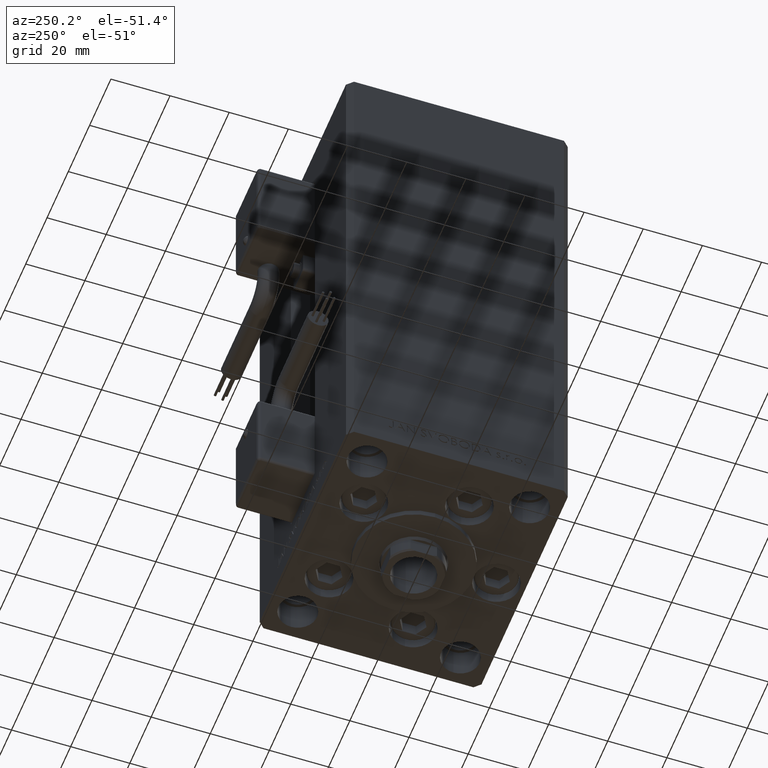
[diagram: clean part render]
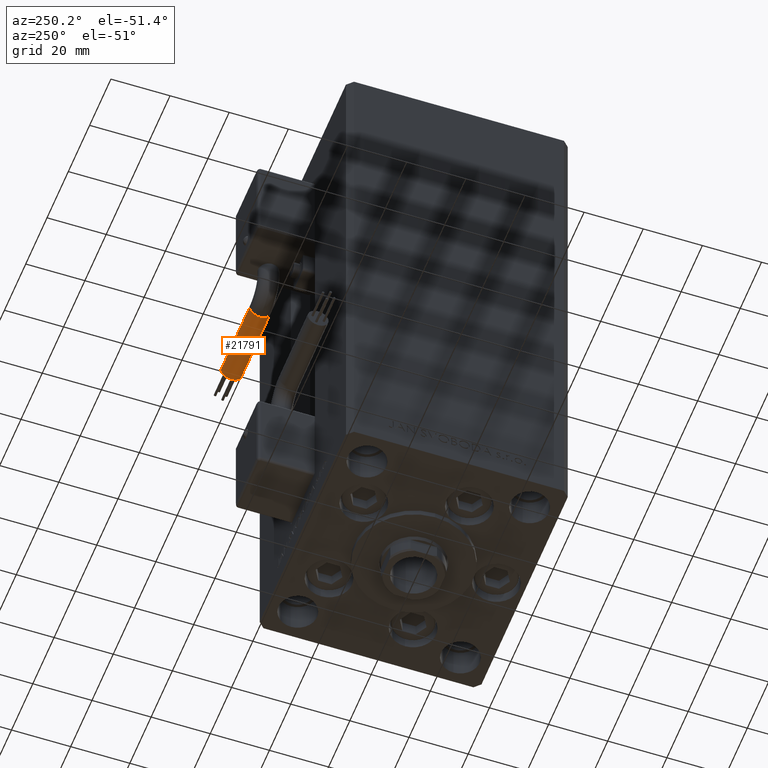
[diagram: same view with one face highlighted and labeled with its STEP entity id]
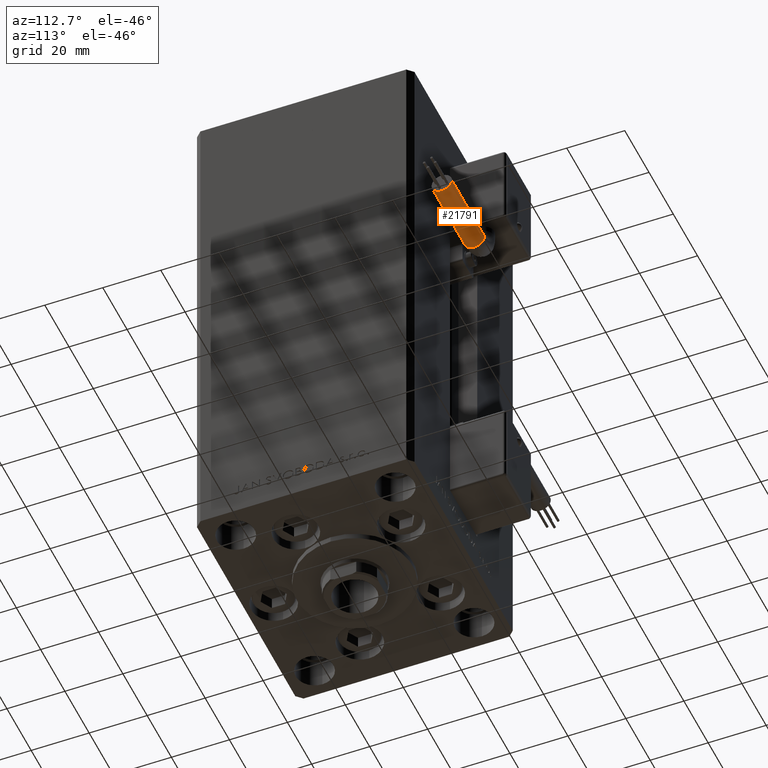
[diagram: same view with one face highlighted and labeled with its STEP entity id]
A machine part, auxiliary view. The second image highlights one B-rep face of the part: STEP entity #21791.
A second angle (auxiliary view) of the same face is appended — the face is thin or edge-on in the first view.
In plain terms, the highlighted cylindrical surface (edge-blend (fillet) strip) has radius 3.5 mm, axis along (1, -0, 0).
Its self-contained STEP definition (entity closure, byte-faithful):
#3403 = ORIENTED_EDGE ( 'NONE', *, *, #40081, .F. ) ;
#4145 = EDGE_LOOP ( 'NONE', ( #23129, #50559, #38020, #38133, #3403 ) ) ;
#4438 = CIRCLE ( 'NONE', #17840, 3.500000000000003109 ) ;
#5101 = CARTESIAN_POINT ( 'NONE',  ( 13.79999999999999893, 38.50000000000000000, -65.00000000000000000 ) ) ;
#5744 = EDGE_CURVE ( 'NONE', #44976, #6992, #22510, .T. ) ;
#6794 = CARTESIAN_POINT ( 'NONE',  ( 40.80000000000000426, 42.00000000000000000, -65.00000000000000000 ) ) ;
#6992 = VERTEX_POINT ( 'NONE', #30523 ) ;
#7109 = CARTESIAN_POINT ( 'NONE',  ( 13.79999999999999893, 42.00000000000000000, -68.50000000000000000 ) ) ;
#9653 = CYLINDRICAL_SURFACE ( 'NONE', #33585, 3.500000000000003109 ) ;
#11167 = EDGE_CURVE ( 'NONE', #37258, #44976, #33373, .T. ) ;
#12368 = VECTOR ( 'NONE', #30132, 1000.000000000000000 ) ;
#13366 = CARTESIAN_POINT ( 'NONE',  ( 40.80000000000000426, 38.50000000000000000, -65.00000000000000000 ) ) ;
#14152 = CARTESIAN_POINT ( 'NONE',  ( 13.80000000000000071, 45.50000000000000711, -65.00000000000000000 ) ) ;
#15051 = VERTEX_POINT ( 'NONE', #13366 ) ;
#15392 = CARTESIAN_POINT ( 'NONE',  ( 13.79999999999999893, 45.50000000000000711, -65.00000000000000000 ) ) ;
#15614 = CARTESIAN_POINT ( 'NONE',  ( 13.79999999999999893, 42.00000000000000000, -65.00000000000000000 ) ) ;
#17840 = AXIS2_PLACEMENT_3D ( 'NONE', #6794, #22233, #30110 ) ;
#20922 = CARTESIAN_POINT ( 'NONE',  ( 13.79999999999999893, 42.00000000000000000, -65.00000000000000000 ) ) ;
#21791 = ADVANCED_FACE ( 'NONE', ( #29808 ), #9653, .T. ) ;
#22233 = DIRECTION ( 'NONE',  ( 1.000000000000000000, 0.000000000000000000, 2.220446049250000002E-16 ) ) ;
#22510 = LINE ( 'NONE', #14152, #12368 ) ;
#22557 = AXIS2_PLACEMENT_3D ( 'NONE', #23216, #47264, #39176 ) ;
#22598 = CIRCLE ( 'NONE', #22557, 3.500000000000003109 ) ;
#23129 = ORIENTED_EDGE ( 'NONE', *, *, #41287, .T. ) ;
#23216 = CARTESIAN_POINT ( 'NONE',  ( 13.79999999999999893, 42.00000000000000000, -65.00000000000000000 ) ) ;
#25874 = DIRECTION ( 'NONE',  ( -4.956352788505158337E-16, -1.000000000000000000, 0.000000000000000000 ) ) ;
#28232 = CARTESIAN_POINT ( 'NONE',  ( 13.79999999999999716, 38.50000000000000000, -65.00000000000000000 ) ) ;
#29808 = FACE_OUTER_BOUND ( 'NONE', #4145, .T. ) ;
#30090 = VECTOR ( 'NONE', #44168, 1000.000000000000000 ) ;
#30110 = DIRECTION ( 'NONE',  ( 0.000000000000000000, 0.000000000000000000, -1.000000000000000000 ) ) ;
#30132 = DIRECTION ( 'NONE',  ( 1.000000000000000000, -2.599999999999999847E-16, 2.220446049250000002E-16 ) ) ;
#30523 = CARTESIAN_POINT ( 'NONE',  ( 40.80000000000000426, 45.50000000000000711, -65.00000000000000000 ) ) ;
#31595 = DIRECTION ( 'NONE',  ( 0.000000000000000000, 0.000000000000000000, -1.000000000000000000 ) ) ;
#33373 = CIRCLE ( 'NONE', #39170, 3.500000000000003109 ) ;
#33585 = AXIS2_PLACEMENT_3D ( 'NONE', #20922, #45992, #25874 ) ;
#37258 = VERTEX_POINT ( 'NONE', #7109 ) ;
#38020 = ORIENTED_EDGE ( 'NONE', *, *, #5744, .T. ) ;
#38133 = ORIENTED_EDGE ( 'NONE', *, *, #49365, .F. ) ;
#39170 = AXIS2_PLACEMENT_3D ( 'NONE', #15614, #47249, #31595 ) ;
#39176 = DIRECTION ( 'NONE',  ( 0.000000000000000000, 0.000000000000000000, -1.000000000000000000 ) ) ;
#40081 = EDGE_CURVE ( 'NONE', #43215, #15051, #40779, .T. ) ;
#40779 = LINE ( 'NONE', #28232, #30090 ) ;
#41287 = EDGE_CURVE ( 'NONE', #43215, #37258, #22598, .T. ) ;
#43215 = VERTEX_POINT ( 'NONE', #5101 ) ;
#44168 = DIRECTION ( 'NONE',  ( 1.000000000000000000, -2.599999999999999847E-16, 2.220446049250000002E-16 ) ) ;
#44976 = VERTEX_POINT ( 'NONE', #15392 ) ;
#45992 = DIRECTION ( 'NONE',  ( 1.000000000000000000, -2.599999999999999847E-16, 2.220446049250000002E-16 ) ) ;
#47249 = DIRECTION ( 'NONE',  ( 1.000000000000000000, 0.000000000000000000, 2.220446049250000002E-16 ) ) ;
#47264 = DIRECTION ( 'NONE',  ( 1.000000000000000000, 0.000000000000000000, 2.220446049250000002E-16 ) ) ;
#49365 = EDGE_CURVE ( 'NONE', #15051, #6992, #4438, .T. ) ;
#50559 = ORIENTED_EDGE ( 'NONE', *, *, #11167, .T. ) ;